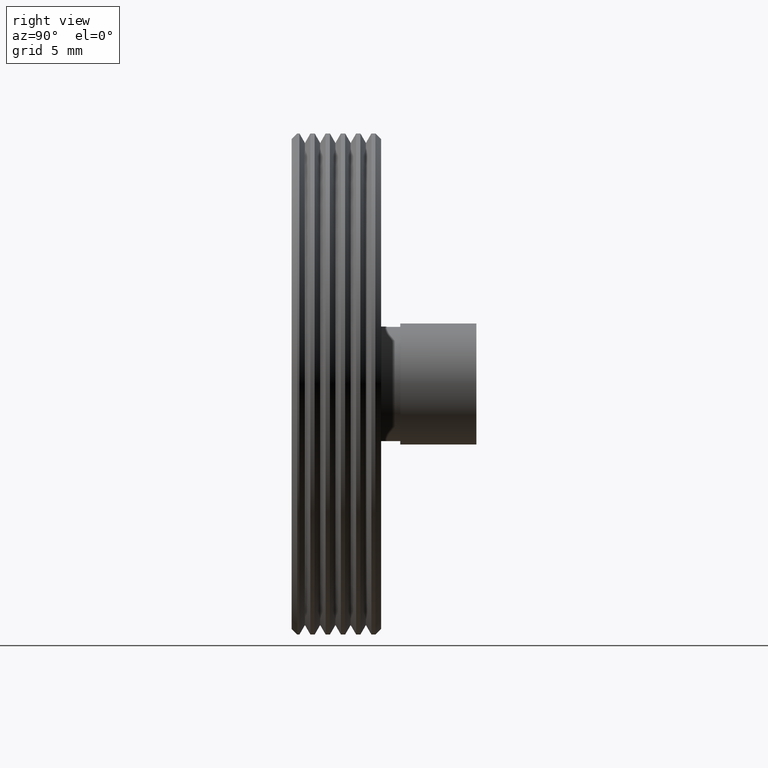
[diagram: clean part render]
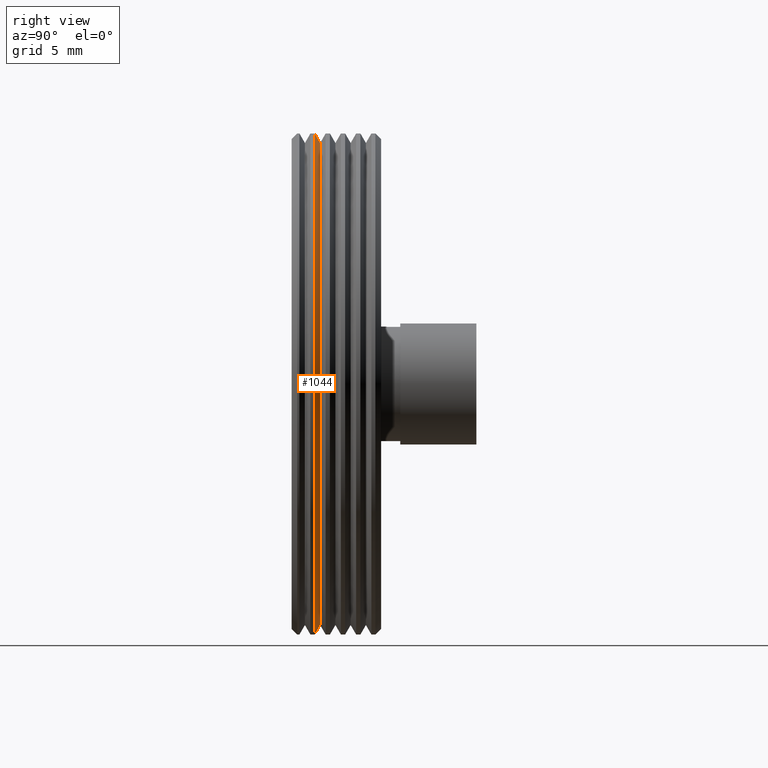
[diagram: same view with one face highlighted and labeled with its STEP entity id]
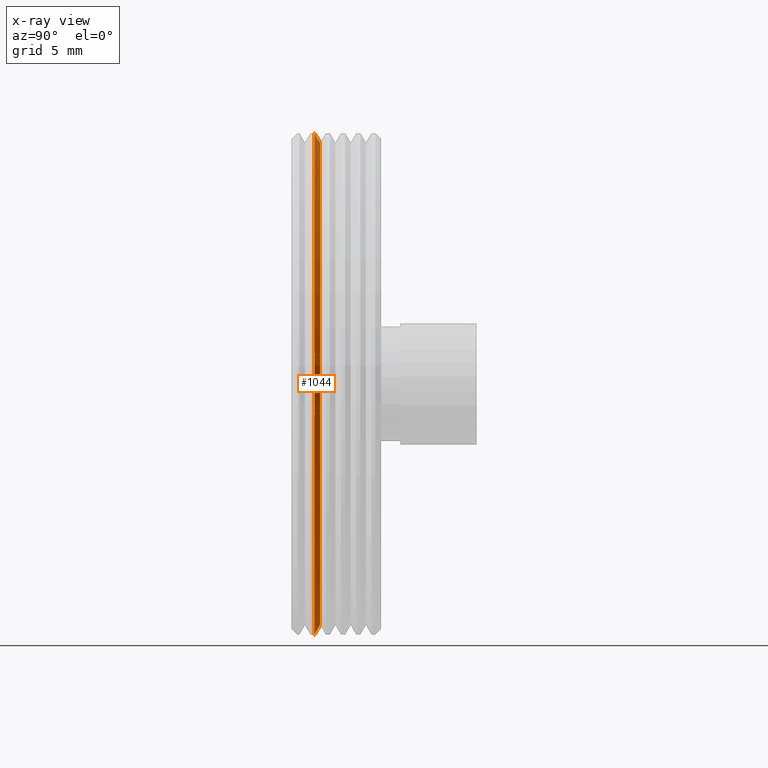
[diagram: x-ray of the same camera — body ghosted, the highlighted face saturated]
A machine part, right view. The second image highlights one B-rep face of the part: STEP entity #1044.
The next image is the same camera in x-ray: the body ghosted, the highlighted face saturated — about 0% of this face is hidden behind the body in this view.
In plain terms, the highlighted conical surface has half-angle 60 deg.
Its self-contained STEP definition (entity closure, byte-faithful):
#22 = CARTESIAN_POINT ( 'NONE',  ( 1.549178200921401754E-15, 1.499999999999999556, 12.65000000000000036 ) ) ;
#82 = DIRECTION ( 'NONE',  ( -0.000000000000000000, 1.000000000000000000, -0.000000000000000000 ) ) ;
#107 = DIRECTION ( 'NONE',  ( 0.000000000000000000, -1.000000000000000000, 0.000000000000000000 ) ) ;
#116 = DIRECTION ( 'NONE',  ( 0.000000000000000000, 0.000000000000000000, -1.000000000000000000 ) ) ;
#123 = DIRECTION ( 'NONE',  ( -0.000000000000000000, 1.000000000000000000, -0.000000000000000000 ) ) ;
#144 = ORIENTED_EDGE ( 'NONE', *, *, #1030, .T. ) ;
#152 = EDGE_CURVE ( 'NONE', #1101, #1245, #1204, .T. ) ;
#226 = LINE ( 'NONE', #22, #708 ) ;
#248 = EDGE_LOOP ( 'NONE', ( #763, #144, #1158, #673 ) ) ;
#300 = CARTESIAN_POINT ( 'NONE',  ( 0.000000000000000000, 1.211324865405183804, 0.000000000000000000 ) ) ;
#332 = AXIS2_PLACEMENT_3D ( 'NONE', #563, #82, #367 ) ;
#334 = LINE ( 'NONE', #419, #429 ) ;
#367 = DIRECTION ( 'NONE',  ( 0.000000000000000000, 0.000000000000000000, 1.000000000000000000 ) ) ;
#415 = CARTESIAN_POINT ( 'NONE',  ( 0.000000000000000000, 1.499999999999999556, 0.000000000000000000 ) ) ;
#419 = CARTESIAN_POINT ( 'NONE',  ( 0.000000000000000000, 1.499999999999999556, -12.65000000000000036 ) ) ;
#429 = VECTOR ( 'NONE', #916, 1000.000000000000000 ) ;
#467 = AXIS2_PLACEMENT_3D ( 'NONE', #300, #123, #116 ) ;
#530 = CARTESIAN_POINT ( 'NONE',  ( 1.579794370900085936E-15, 1.499999999999999556, -12.65000000000000036 ) ) ;
#563 = CARTESIAN_POINT ( 'NONE',  ( 0.000000000000000000, 1.499999999999999556, 0.000000000000000000 ) ) ;
#606 = CARTESIAN_POINT ( 'NONE',  ( 0.000000000000000000, 1.211324865405183804, 13.15000000000000568 ) ) ;
#673 = ORIENTED_EDGE ( 'NONE', *, *, #1120, .F. ) ;
#708 = VECTOR ( 'NONE', #790, 1000.000000000000000 ) ;
#763 = ORIENTED_EDGE ( 'NONE', *, *, #879, .F. ) ;
#790 = DIRECTION ( 'NONE',  ( 1.060575238724907285E-16, -0.4999999999999995004, 0.8660254037844389297 ) ) ;
#822 = CARTESIAN_POINT ( 'NONE',  ( 1.610410540878770117E-15, 1.211324865405183804, -13.15000000000000568 ) ) ;
#860 = AXIS2_PLACEMENT_3D ( 'NONE', #415, #107, #1171 ) ;
#875 = FACE_OUTER_BOUND ( 'NONE', #248, .T. ) ;
#879 = EDGE_CURVE ( 'NONE', #918, #1188, #1125, .T. ) ;
#916 = DIRECTION ( 'NONE',  ( 0.000000000000000000, -0.4999999999999995004, -0.8660254037844389297 ) ) ;
#918 = VERTEX_POINT ( 'NONE', #1165 ) ;
#1002 = CONICAL_SURFACE ( 'NONE', #860, 12.65000000000000036, 1.047197551196598297 ) ;
#1030 = EDGE_CURVE ( 'NONE', #918, #1101, #226, .T. ) ;
#1044 = ADVANCED_FACE ( 'NONE', ( #875 ), #1002, .T. ) ;
#1101 = VERTEX_POINT ( 'NONE', #606 ) ;
#1120 = EDGE_CURVE ( 'NONE', #1188, #1245, #334, .T. ) ;
#1125 = CIRCLE ( 'NONE', #332, 12.65000000000000036 ) ;
#1158 = ORIENTED_EDGE ( 'NONE', *, *, #152, .T. ) ;
#1165 = CARTESIAN_POINT ( 'NONE',  ( 0.000000000000000000, 1.499999999999999556, 12.65000000000000036 ) ) ;
#1171 = DIRECTION ( 'NONE',  ( 0.000000000000000000, 0.000000000000000000, -1.000000000000000000 ) ) ;
#1188 = VERTEX_POINT ( 'NONE', #530 ) ;
#1204 = CIRCLE ( 'NONE', #467, 13.15000000000000568 ) ;
#1245 = VERTEX_POINT ( 'NONE', #822 ) ;